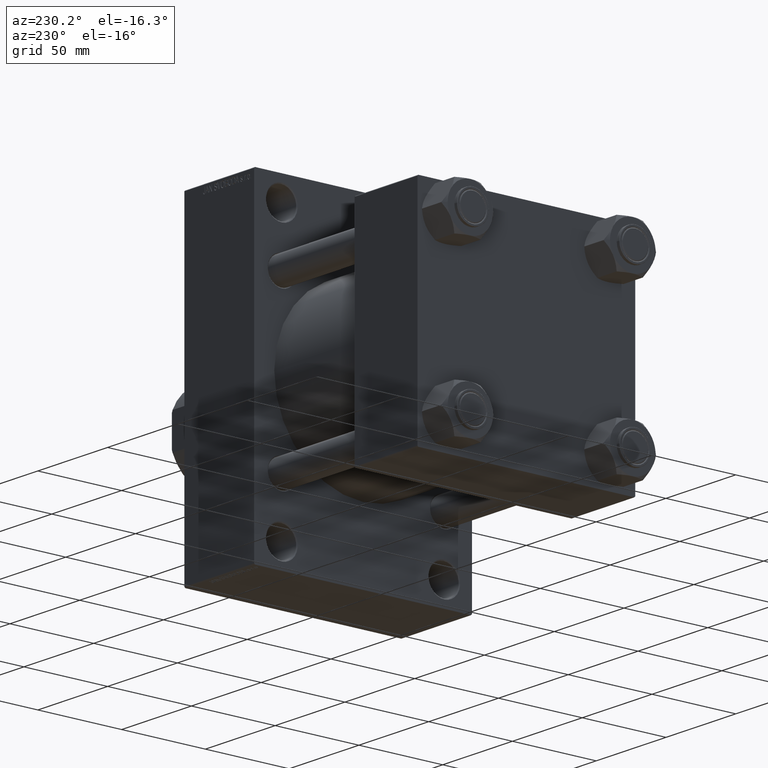
[diagram: clean part render]
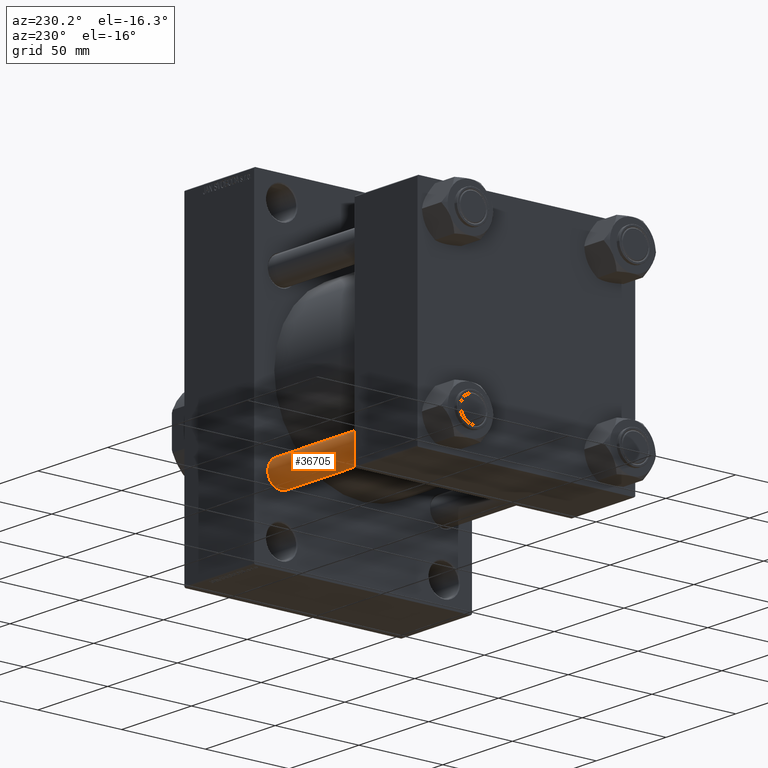
[diagram: same view with one face highlighted and labeled with its STEP entity id]
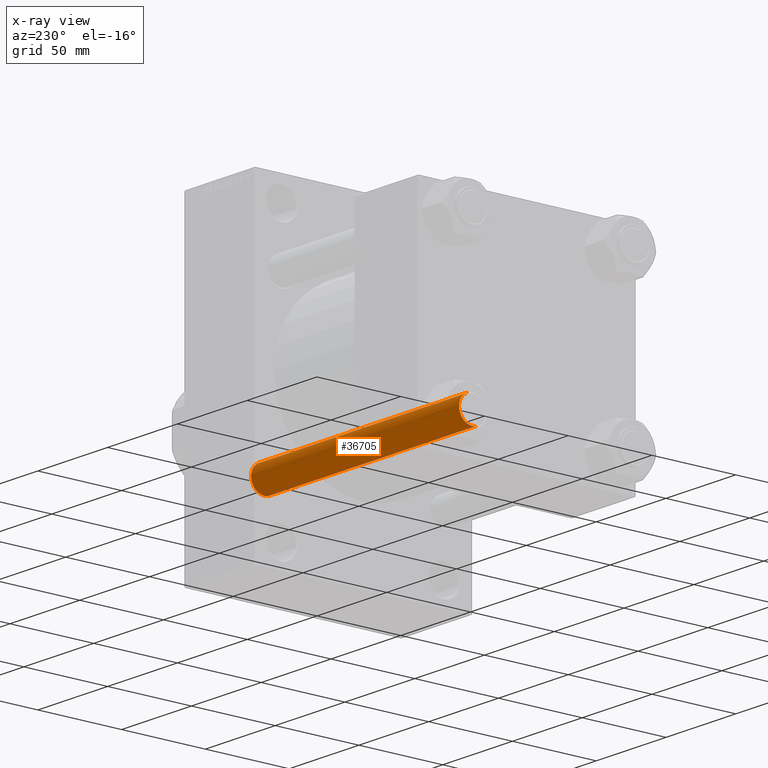
[diagram: x-ray of the same camera — body ghosted, the highlighted face saturated]
A machine part, auxiliary view. The second image highlights one B-rep face of the part: STEP entity #36705.
The next image is the same camera in x-ray: the body ghosted, the highlighted face saturated — about 0% of this face is hidden behind the body in this view.
In plain terms, the highlighted cylindrical surface (edge-blend (fillet) strip) has radius 8 mm, axis along (1, -0, 0).
Its self-contained STEP definition (entity closure, byte-faithful):
#926 = LINE ( 'NONE', #15656, #35215 ) ;
#1156 = DIRECTION ( 'NONE',  ( -0.000000000000000000, -0.000000000000000000, -1.000000000000000000 ) ) ;
#1586 = VERTEX_POINT ( 'NONE', #38147 ) ;
#2362 = VERTEX_POINT ( 'NONE', #44940 ) ;
#2900 = CARTESIAN_POINT ( 'NONE',  ( 8.000000000000000000, 9.797174393178825657E-16, 0.5000000000000004441 ) ) ;
#3681 = CIRCLE ( 'NONE', #32220, 8.000000000000000000 ) ;
#6825 = DIRECTION ( 'NONE',  ( 1.000000000000000000, 0.000000000000000000, 0.000000000000000000 ) ) ;
#7177 = VERTEX_POINT ( 'NONE', #9784 ) ;
#8148 = CYLINDRICAL_SURFACE ( 'NONE', #45749, 8.000000000000000000 ) ;
#9784 = CARTESIAN_POINT ( 'NONE',  ( 8.000000000000000000, 9.797174393178825657E-16, 149.5000000000000000 ) ) ;
#10293 = LINE ( 'NONE', #29335, #37084 ) ;
#13841 = EDGE_CURVE ( 'NONE', #7177, #42534, #926, .T. ) ;
#15656 = CARTESIAN_POINT ( 'NONE',  ( 8.000000000000000000, 9.797174393178825657E-16, 150.0000000000000000 ) ) ;
#16945 = DIRECTION ( 'NONE',  ( 0.000000000000000000, 0.000000000000000000, -1.000000000000000000 ) ) ;
#18537 = CARTESIAN_POINT ( 'NONE',  ( 0.000000000000000000, 0.000000000000000000, 150.0000000000000000 ) ) ;
#21067 = CARTESIAN_POINT ( 'NONE',  ( 0.000000000000000000, 0.000000000000000000, 0.5000000000000004441 ) ) ;
#21694 = ORIENTED_EDGE ( 'NONE', *, *, #32135, .T. ) ;
#22344 = ORIENTED_EDGE ( 'NONE', *, *, #13841, .T. ) ;
#24656 = DIRECTION ( 'NONE',  ( 1.000000000000000000, 0.000000000000000000, 0.000000000000000000 ) ) ;
#24863 = AXIS2_PLACEMENT_3D ( 'NONE', #36464, #16945, #24656 ) ;
#26497 = FACE_OUTER_BOUND ( 'NONE', #36695, .T. ) ;
#28320 = EDGE_CURVE ( 'NONE', #2362, #1586, #10293, .T. ) ;
#29335 = CARTESIAN_POINT ( 'NONE',  ( -8.000000000000000000, 0.000000000000000000, 150.0000000000000000 ) ) ;
#32135 = EDGE_CURVE ( 'NONE', #2362, #7177, #40260, .T. ) ;
#32220 = AXIS2_PLACEMENT_3D ( 'NONE', #21067, #43045, #6825 ) ;
#33744 = DIRECTION ( 'NONE',  ( -0.000000000000000000, -0.000000000000000000, -1.000000000000000000 ) ) ;
#34446 = ORIENTED_EDGE ( 'NONE', *, *, #28320, .F. ) ;
#35215 = VECTOR ( 'NONE', #1156, 1000.000000000000000 ) ;
#36464 = CARTESIAN_POINT ( 'NONE',  ( 0.000000000000000000, 0.000000000000000000, 149.5000000000000000 ) ) ;
#36695 = EDGE_LOOP ( 'NONE', ( #21694, #22344, #40793, #34446 ) ) ;
#36705 = ADVANCED_FACE ( 'NONE', ( #26497 ), #8148, .T. ) ;
#36880 = DIRECTION ( 'NONE',  ( -1.000000000000000000, 0.000000000000000000, 0.000000000000000000 ) ) ;
#37084 = VECTOR ( 'NONE', #47442, 1000.000000000000000 ) ;
#38147 = CARTESIAN_POINT ( 'NONE',  ( -8.000000000000000000, 0.000000000000000000, 0.5000000000000004441 ) ) ;
#40260 = CIRCLE ( 'NONE', #24863, 8.000000000000000000 ) ;
#40793 = ORIENTED_EDGE ( 'NONE', *, *, #46366, .T. ) ;
#42534 = VERTEX_POINT ( 'NONE', #2900 ) ;
#43045 = DIRECTION ( 'NONE',  ( -0.000000000000000000, -0.000000000000000000, 1.000000000000000000 ) ) ;
#44940 = CARTESIAN_POINT ( 'NONE',  ( -8.000000000000000000, 0.000000000000000000, 149.5000000000000000 ) ) ;
#45749 = AXIS2_PLACEMENT_3D ( 'NONE', #18537, #33744, #36880 ) ;
#46366 = EDGE_CURVE ( 'NONE', #42534, #1586, #3681, .T. ) ;
#47442 = DIRECTION ( 'NONE',  ( -0.000000000000000000, -0.000000000000000000, -1.000000000000000000 ) ) ;